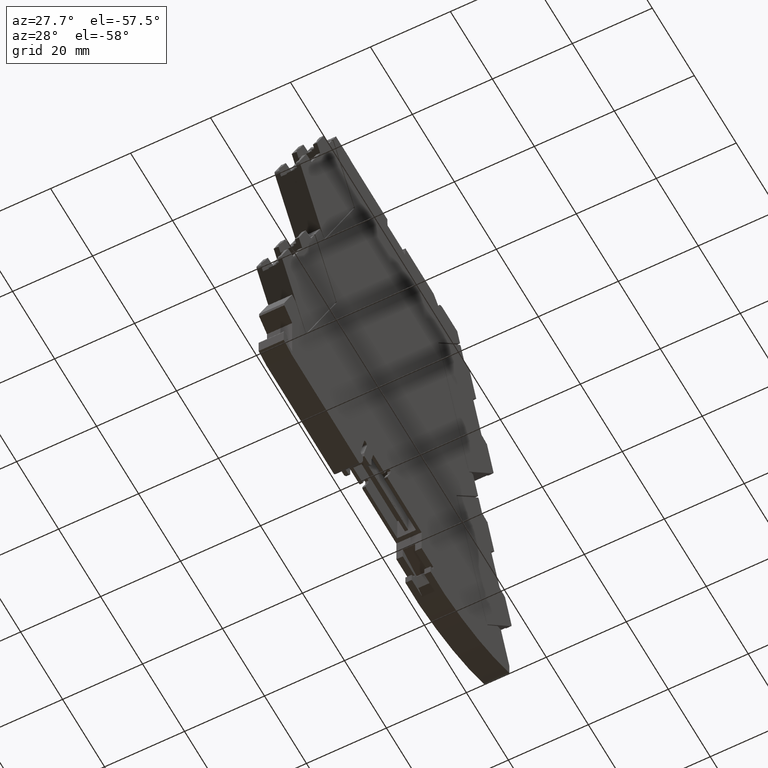
[diagram: clean part render]
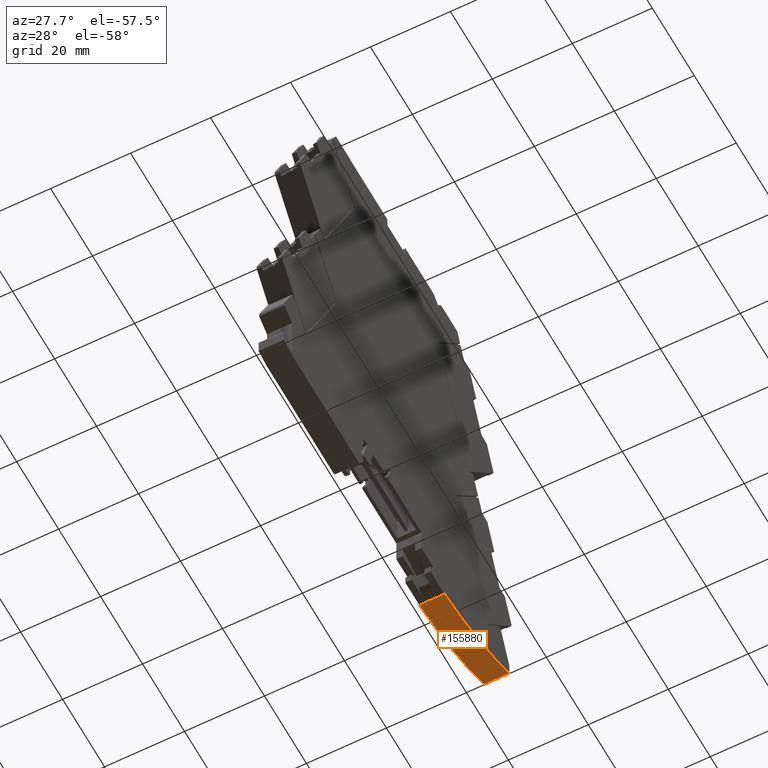
[diagram: same view with one face highlighted and labeled with its STEP entity id]
A machine part, auxiliary view. The second image highlights one B-rep face of the part: STEP entity #155880.
In plain terms, the highlighted cylindrical surface (partial cylindrical patch) has radius 80 mm, axis along (1, -0, -0).
Its self-contained STEP definition (entity closure, byte-faithful):
#4520=CARTESIAN_POINT('',(38.8654179275983,-6.49999999999157,
-14.6999999993261));
#4530=VERTEX_POINT('',#4520);
#4560=CARTESIAN_POINT('',(29.5007235919562,72.9500000000084,
-14.6999999994091));
#4570=DIRECTION('',(-8.87912561076062E-12,6.5458857184369E-15,1.));
#4580=DIRECTION('',(1.,1.11022302459215E-16,8.87912561076062E-12));
#4590=AXIS2_PLACEMENT_3D('',#4560,#4570,#4580);
#4600=CIRCLE('',#4590,80.0000000000001);
#4610=CARTESIAN_POINT('',(69.7507235919569,3.81290792925414,
-14.699999999052));
#4620=VERTEX_POINT('',#4610);
#4630=EDGE_CURVE('',#4530,#4620,#4600,.T.);
#9740=CARTESIAN_POINT('',(69.750723591901,3.81290792925418,
-8.39999999932436));
#9750=VERTEX_POINT('',#9740);
#9780=CARTESIAN_POINT('',(29.5007235919003,72.9500000000085,
-8.3999999996822));
#9790=DIRECTION('',(-8.87912561076062E-12,6.5458857184369E-15,1.));
#9800=DIRECTION('',(1.,1.11022302459215E-16,8.87912561076062E-12));
#9810=AXIS2_PLACEMENT_3D('',#9780,#9790,#9800);
#9820=CIRCLE('',#9810,80.0000000000001);
#9830=CARTESIAN_POINT('',(38.8654179275423,-6.49999999999153,
-8.39999999959853));
#9840=VERTEX_POINT('',#9830);
#9850=EDGE_CURVE('',#9840,#9750,#9820,.T.);
#135500=CARTESIAN_POINT('',(69.750723591901,3.81290792925418,
-8.39999999932436));
#135510=DIRECTION('',(-8.87912561076062E-12,6.5458857184369E-15,1.));
#135520=VECTOR('',#135510,1.);
#135530=LINE('',#135500,#135520);
#135540=EDGE_CURVE('',#4620,#9750,#135530,.T.);
#154860=CARTESIAN_POINT('',(38.8654179275423,-6.49999999999153,
-8.39999999959853));
#154870=DIRECTION('',(8.87912561076062E-12,-6.5458857184369E-15,-1.));
#154880=VECTOR('',#154870,1.);
#154890=LINE('',#154860,#154880);
#154900=EDGE_CURVE('',#9840,#4530,#154890,.T.);
#155770=CARTESIAN_POINT('',(29.5007235919003,72.9500000000085,
-8.3999999996822));
#155780=DIRECTION('',(-8.87912561076062E-12,6.5458857184369E-15,1.));
#155790=DIRECTION('',(1.,1.11022302459215E-16,8.87912561076062E-12));
#155800=AXIS2_PLACEMENT_3D('',#155770,#155780,#155790);
#155810=CYLINDRICAL_SURFACE('',#155800,80.0000000000001);
#155820=ORIENTED_EDGE('',*,*,#9850,.F.);
#155830=ORIENTED_EDGE('',*,*,#135540,.T.);
#155840=ORIENTED_EDGE('',*,*,#4630,.T.);
#155850=ORIENTED_EDGE('',*,*,#154900,.T.);
#155860=EDGE_LOOP('',(#155850,#155840,#155830,#155820));
#155870=FACE_OUTER_BOUND('',#155860,.T.);
#155880=ADVANCED_FACE('',(#155870),#155810,.T.);